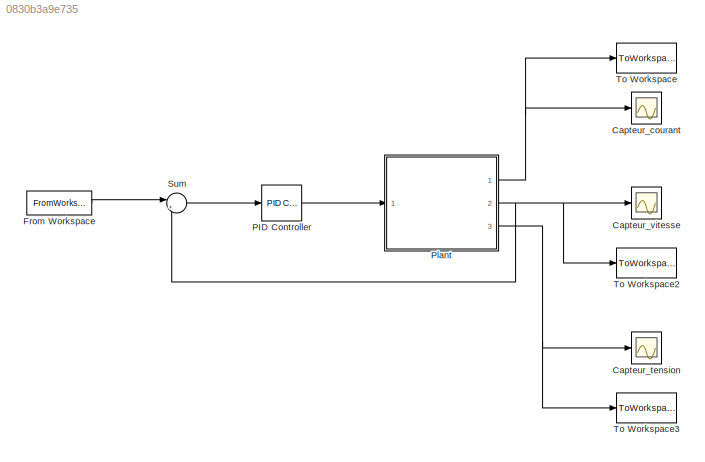
MODEL slx_0830b3a9e735
KIND model
CONFIG AbsTol = auto
CONFIG EnableMultiTasking = off
CONFIG FixedStep = T
CONFIG MaxStep = T
CONFIG MinStep = auto
CONFIG RelTol = 1e-3
CONFIG SampleTimeConstraint = Unconstrained
CONFIG Solver = ode4
CONFIG SolverName = ode4
CONFIG StartTime = 0.0
CONFIG StopTime = simEnd
BLOCK [Scope] Capteur_courant
  Floating = off
  NumInputPorts = 1
  Ports = [1]
  ScopeSpecificationString = Simulink.scopes.TimeScopeBlockCfg('CurrentConfiguration', extmgr.ConfigurationSet(extmgr.Configuration('Core','General UI',true),extmgr.Configuration('Core','Source UI',true),extmgr.Configuration('Sources','WiredSimulink',true,'DataLoggingVariableName','currant','DataLoggingSaveFormat','StructureWithTime'),extmgr.Configuration('Visuals','Time Domain',true,'SerializedDisplays',{struct('MinYLimReal'...<+1482ch>
BLOCK [Scope] Capteur_tension
  Floating = off
  NumInputPorts = 1
  Ports = [1]
  ScopeSpecificationString = Simulink.scopes.TimeScopeBlockCfg('CurrentConfiguration', extmgr.ConfigurationSet(extmgr.Configuration('Core','General UI',true),extmgr.Configuration('Core','Source UI',true),extmgr.Configuration('Sources','WiredSimulink',true,'DataLoggingVariableName','ScopeData6','DataLoggingSaveFormat','StructureWithTime'),extmgr.Configuration('Visuals','Time Domain',true,'SerializedDisplays',{struct('MinYLimRe...<+1489ch>
BLOCK [Scope] Capteur_vitesse
  Floating = off
  NumInputPorts = 1
  Ports = [1]
  ScopeSpecificationString = Simulink.scopes.TimeScopeBlockCfg('CurrentConfiguration', extmgr.ConfigurationSet(extmgr.Configuration('Core','General UI',true),extmgr.Configuration('Core','Source UI',true),extmgr.Configuration('Sources','WiredSimulink',true,'DataLoggingVariableName','speed','DataLoggingSaveFormat','StructureWithTime'),extmgr.Configuration('Visuals','Time Domain',true,'SerializedDisplays',{struct('MinYLimReal','...<+1457ch>
BLOCK [FromWorkspace] From Workspace
  SampleTime = 0
  VariableName = command
  ZeroCross = on
BLOCK [Reference] PID Controller  REF=simulink/Continuous/PID Controller
  Ports = [1, 1]
  SourceBlock = simulink/Continuous/PID Controller
  SourceProductBaseCode = SL
  SourceProductName = Simulink
  SourceType = PID 1dof
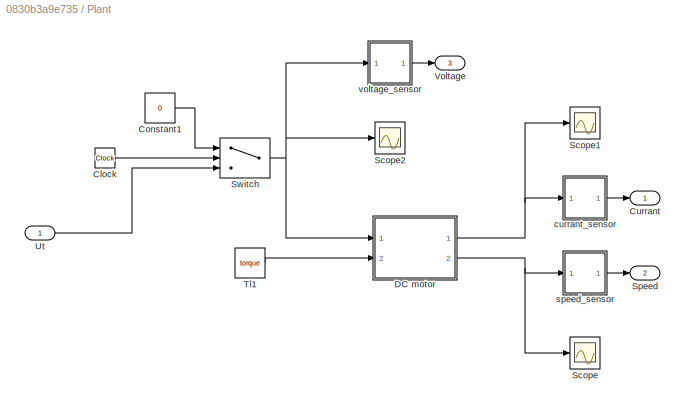
BLOCK [SubSystem] Plant
  Ports = [1, 3]
  RequestExecContextInheritance = off
BLOCK [Clock] Plant/Clock
BLOCK [Constant] Plant/Constant1
  Value = 0
BLOCK [Outport] Plant/Currant
  IconDisplay = Port number
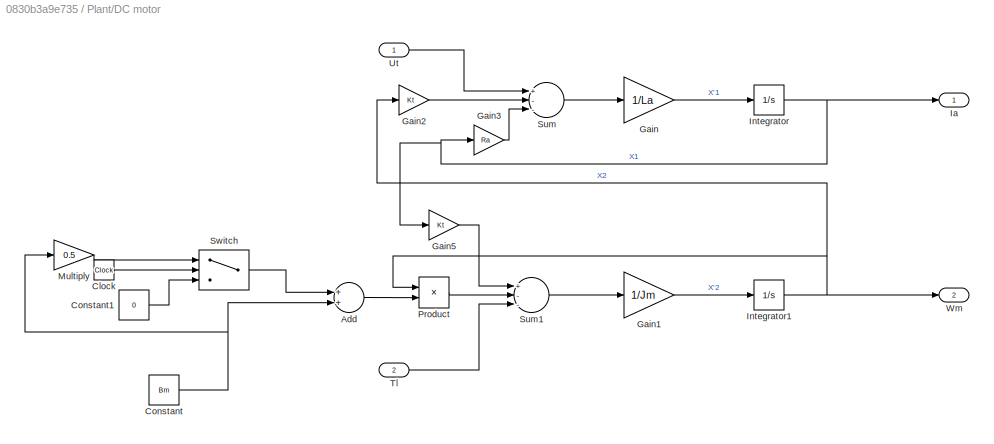
BLOCK [SubSystem] Plant/DC motor
  Ports = [2, 2]
  RequestExecContextInheritance = off
BLOCK [Sum] Plant/DC motor/Add
  InputSameDT = off
  OutDataTypeStr = Inherit: Inherit via internal rule
  Ports = [2, 1]
  SaturateOnIntegerOverflow = off
BLOCK [Clock] Plant/DC motor/Clock
BLOCK [Constant] Plant/DC motor/Constant
  Value = Bm
BLOCK [Constant] Plant/DC motor/Constant1
  Value = 0
BLOCK [Gain] Plant/DC motor/Gain
  Gain = 1/La
  OutDataTypeStr = Inherit: Inherit via internal rule
  ParamDataTypeStr = Inherit: Inherit via internal rule
  SaturateOnIntegerOverflow = off
BLOCK [Gain] Plant/DC motor/Gain1
  Gain = 1/Jm
  OutDataTypeStr = Inherit: Inherit via internal rule
  ParamDataTypeStr = Inherit: Inherit via internal rule
  SaturateOnIntegerOverflow = off
BLOCK [Gain] Plant/DC motor/Gain2
  Gain = Kt
  OutDataTypeStr = Inherit: Inherit via internal rule
  ParamDataTypeStr = Inherit: Inherit via internal rule
  SaturateOnIntegerOverflow = off
BLOCK [Gain] Plant/DC motor/Gain3
  Gain = Ra
  OutDataTypeStr = Inherit: Inherit via internal rule
  ParamDataTypeStr = Inherit: Inherit via internal rule
  SaturateOnIntegerOverflow = off
BLOCK [Gain] Plant/DC motor/Gain5
  Gain = Kt
  OutDataTypeStr = Inherit: Inherit via internal rule
  ParamDataTypeStr = Inherit: Inherit via internal rule
  SaturateOnIntegerOverflow = off
BLOCK [Outport] Plant/DC motor/Ia
  IconDisplay = Port number
BLOCK [Integrator] Plant/DC motor/Integrator
  Ports = [1, 1]
BLOCK [Integrator] Plant/DC motor/Integrator1
  Ports = [1, 1]
BLOCK [Gain] Plant/DC motor/Multiply
  Gain = 0.5
  OutDataTypeStr = Inherit: Inherit via internal rule
  ParamDataTypeStr = Inherit: Inherit via internal rule
  SaturateOnIntegerOverflow = off
BLOCK [Product] Plant/DC motor/Product
  InputSameDT = off
  OutDataTypeStr = Inherit: Inherit via internal rule
  Ports = [2, 1]
  RndMeth = Floor
  SaturateOnIntegerOverflow = off
BLOCK [Sum] Plant/DC motor/Sum
  InputSameDT = off
  Inputs = +--
  OutDataTypeStr = Inherit: Inherit via internal rule
  Ports = [3, 1]
  SaturateOnIntegerOverflow = off
BLOCK [Sum] Plant/DC motor/Sum1
  InputSameDT = off
  Inputs = +--
  OutDataTypeStr = Inherit: Inherit via internal rule
  Ports = [3, 1]
  SaturateOnIntegerOverflow = off
BLOCK [Switch] Plant/DC motor/Switch
  Criteria = u2 > Threshold
  InputSameDT = off
  SaturateOnIntegerOverflow = off
  Threshold = tBm
BLOCK [Inport] Plant/DC motor/Tl
  IconDisplay = Port number
  Port = 2
BLOCK [Inport] Plant/DC motor/Ut
  IconDisplay = Port number
BLOCK [Outport] Plant/DC motor/Wm
  IconDisplay = Port number
  Port = 2
BLOCK [Scope] Plant/Scope
  Floating = off
  NumInputPorts = 1
  Ports = [1]
  ScopeSpecificationString = Simulink.scopes.TimeScopeBlockCfg('CurrentConfiguration', extmgr.ConfigurationSet(extmgr.Configuration('Core','General UI',true),extmgr.Configuration('Core','Source UI',true),extmgr.Configuration('Sources','WiredSimulink',true,'DataLoggingVariableName','ScopeData2'),extmgr.Configuration('Visuals','Time Domain',true,'SerializedDisplays',{struct('MinYLimReal','-2.38427','MaxYLimReal','21.45842','YLa...<+1404ch>
BLOCK [Scope] Plant/Scope1
  Floating = off
  NumInputPorts = 1
  Ports = [1]
  ScopeSpecificationString = Simulink.scopes.TimeScopeBlockCfg('CurrentConfiguration', extmgr.ConfigurationSet(extmgr.Configuration('Core','General UI',true),extmgr.Configuration('Core','Source UI',true),extmgr.Configuration('Sources','WiredSimulink',true,'DataLoggingVariableName','ScopeData3'),extmgr.Configuration('Visuals','Time Domain',true,'SerializedDisplays',{struct('MinYLimReal','-0.29608','MaxYLimReal','2.66473','YLab...<+1399ch>
BLOCK [Scope] Plant/Scope2
  Floating = off
  NumInputPorts = 1
  Ports = [1]
  ScopeSpecificationString = Simulink.scopes.TimeScopeBlockCfg('CurrentConfiguration', extmgr.ConfigurationSet(extmgr.Configuration('Core','General UI',true),extmgr.Configuration('Core','Source UI',true),extmgr.Configuration('Sources','WiredSimulink',true,'DataLoggingVariableName','ScopeData5'),extmgr.Configuration('Visuals','Time Domain',true,'SerializedDisplays',{struct('MinYLimReal','-21.24447','MaxYLimReal','191.19855','Y...<+1405ch>
BLOCK [Outport] Plant/Speed
  IconDisplay = Port number
  Port = 2
BLOCK [Switch] Plant/Switch
  Criteria = u2 > Threshold
  InputSameDT = off
  SaturateOnIntegerOverflow = off
  Threshold = tUt
BLOCK [Constant] Plant/Tl1
  Value = torque
BLOCK [Inport] Plant/Ut
  IconDisplay = Port number
BLOCK [Outport] Plant/Voltage
  IconDisplay = Port number
  Port = 3
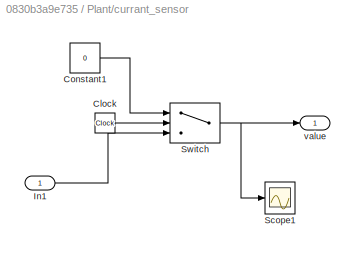
BLOCK [SubSystem] Plant/currant_sensor
  Ports = [1, 1]
  RequestExecContextInheritance = off
BLOCK [Clock] Plant/currant_sensor/Clock
BLOCK [Constant] Plant/currant_sensor/Constant1
  Value = 0
BLOCK [Inport] Plant/currant_sensor/In1
  IconDisplay = Port number
BLOCK [Scope] Plant/currant_sensor/Scope1
  Floating = off
  NumInputPorts = 1
  Ports = [1]
  ScopeSpecificationString = Simulink.scopes.TimeScopeBlockCfg('CurrentConfiguration', extmgr.ConfigurationSet(extmgr.Configuration('Core','General UI',true),extmgr.Configuration('Core','Source UI',true),extmgr.Configuration('Sources','WiredSimulink',true,'DataLoggingVariableName','ScopeData1'),extmgr.Configuration('Visuals','Time Domain',true,'SerializedDisplays',{struct('MinYLimReal','-2.73824','MaxYLimReal','17.96612','YLa...<+1415ch>
BLOCK [Switch] Plant/currant_sensor/Switch
  Criteria = u2 > Threshold
  InputSameDT = off
  SaturateOnIntegerOverflow = off
  Threshold = tI
BLOCK [Outport] Plant/currant_sensor/value
  IconDisplay = Port number
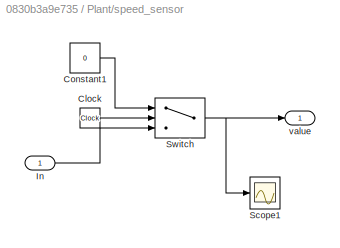
BLOCK [SubSystem] Plant/speed_sensor
  Ports = [1, 1]
  RequestExecContextInheritance = off
BLOCK [Clock] Plant/speed_sensor/Clock
BLOCK [Constant] Plant/speed_sensor/Constant1
  Value = 0
BLOCK [Inport] Plant/speed_sensor/In
  IconDisplay = Port number
BLOCK [Scope] Plant/speed_sensor/Scope1
  Floating = off
  NumInputPorts = 1
  Ports = [1]
  ScopeSpecificationString = Simulink.scopes.TimeScopeBlockCfg('CurrentConfiguration', extmgr.ConfigurationSet(extmgr.Configuration('Core','General UI',true),extmgr.Configuration('Core','Source UI',true),extmgr.Configuration('Sources','WiredSimulink',true,'DataLoggingVariableName','ScopeData1'),extmgr.Configuration('Visuals','Time Domain',true,'SerializedDisplays',{struct('MinYLimReal','-33.05106','MaxYLimReal','218.30073','Y...<+1421ch>
BLOCK [Switch] Plant/speed_sensor/Switch
  Criteria = u2 > Threshold
  InputSameDT = off
  SaturateOnIntegerOverflow = off
  Threshold = tW
BLOCK [Outport] Plant/speed_sensor/value
  IconDisplay = Port number
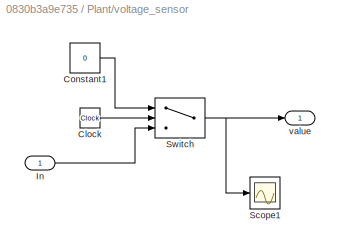
BLOCK [SubSystem] Plant/voltage_sensor
  Ports = [1, 1]
  RequestExecContextInheritance = off
BLOCK [Clock] Plant/voltage_sensor/Clock
BLOCK [Constant] Plant/voltage_sensor/Constant1
  Value = 0
BLOCK [Inport] Plant/voltage_sensor/In
  IconDisplay = Port number
BLOCK [Scope] Plant/voltage_sensor/Scope1
  Floating = off
  NumInputPorts = 1
  Ports = [1]
  ScopeSpecificationString = Simulink.scopes.TimeScopeBlockCfg('CurrentConfiguration', extmgr.ConfigurationSet(extmgr.Configuration('Core','General UI',true),extmgr.Configuration('Core','Source UI',true),extmgr.Configuration('Sources','WiredSimulink',true,'DataLoggingVariableName','ScopeData1'),extmgr.Configuration('Visuals','Time Domain',true,'SerializedDisplays',{struct('MinYLimReal','17.5947','MaxYLimReal','25.05524','YLab...<+1413ch>
BLOCK [Switch] Plant/voltage_sensor/Switch
  Criteria = u2 > Threshold
  InputSameDT = off
  SaturateOnIntegerOverflow = off
  Threshold = tU
BLOCK [Outport] Plant/voltage_sensor/value
  IconDisplay = Port number
BLOCK [Sum] Sum
  IconShape = round
  InputSameDT = off
  Inputs = |+-
  OutDataTypeStr = Inherit: Inherit via internal rule
  Ports = [2, 1]
  SaturateOnIntegerOverflow = off
BLOCK [ToWorkspace] To Workspace
  FixptAsFi = on
  MaxDataPoints = inf
  Ports = [1]
  SampleTime = T
  SaveFormat = Timeseries
  VariableName = currant
BLOCK [ToWorkspace] To Workspace2
  FixptAsFi = on
  MaxDataPoints = inf
  Ports = [1]
  SampleTime = T
  SaveFormat = Timeseries
  VariableName = speed
BLOCK [ToWorkspace] To Workspace3
  FixptAsFi = on
  MaxDataPoints = inf
  Ports = [1]
  SampleTime = T
  SaveFormat = Timeseries
  VariableName = voltage
LINE From Workspace:1 -> Sum:1
LINE PID Controller:1 -> Plant:1
LINE Plant/Clock:1 -> Plant/Switch:2
LINE Plant/Constant1:1 -> Plant/Switch:1
LINE Plant/DC motor/Add:1 -> Plant/DC motor/Product:2
LINE Plant/DC motor/Clock:1 -> Plant/DC motor/Switch:2
LINE Plant/DC motor/Constant1:1 -> Plant/DC motor/Switch:3
NET Plant/DC motor/Constant:1 -> Plant/DC motor/Add:2, Plant/DC motor/Multiply:1
LINE Plant/DC motor/Gain1:1 -> Plant/DC motor/Integrator1:1
LINE Plant/DC motor/Gain2:1 -> Plant/DC motor/Sum:2
LINE Plant/DC motor/Gain3:1 -> Plant/DC motor/Sum:3
LINE Plant/DC motor/Gain5:1 -> Plant/DC motor/Sum1:1
LINE Plant/DC motor/Gain:1 -> Plant/DC motor/Integrator:1
NET Plant/DC motor/Integrator1:1 -> Plant/DC motor/Gain2:1, Plant/DC motor/Product:1, Plant/DC motor/Wm:1
NET Plant/DC motor/Integrator:1 -> Plant/DC motor/Gain3:1, Plant/DC motor/Gain5:1, Plant/DC motor/Ia:1
LINE Plant/DC motor/Multiply:1 -> Plant/DC motor/Switch:1
LINE Plant/DC motor/Product:1 -> Plant/DC motor/Sum1:2
LINE Plant/DC motor/Sum1:1 -> Plant/DC motor/Gain1:1
LINE Plant/DC motor/Sum:1 -> Plant/DC motor/Gain:1
LINE Plant/DC motor/Switch:1 -> Plant/DC motor/Add:1
LINE Plant/DC motor/Tl:1 -> Plant/DC motor/Sum1:3
LINE Plant/DC motor/Ut:1 -> Plant/DC motor/Sum:1
NET Plant/DC motor:1 -> Plant/Scope1:1, Plant/currant_sensor:1
NET Plant/DC motor:2 -> Plant/Scope:1, Plant/speed_sensor:1
NET Plant/Switch:1 -> Plant/DC motor:1, Plant/Scope2:1, Plant/voltage_sensor:1
LINE Plant/Tl1:1 -> Plant/DC motor:2
LINE Plant/Ut:1 -> Plant/Switch:3
LINE Plant/currant_sensor/Clock:1 -> Plant/currant_sensor/Switch:2
LINE Plant/currant_sensor/Constant1:1 -> Plant/currant_sensor/Switch:1
LINE Plant/currant_sensor/In1:1 -> Plant/currant_sensor/Switch:3
NET Plant/currant_sensor/Switch:1 -> Plant/currant_sensor/Scope1:1, Plant/currant_sensor/value:1
LINE Plant/currant_sensor:1 -> Plant/Currant:1
LINE Plant/speed_sensor/Clock:1 -> Plant/speed_sensor/Switch:2
LINE Plant/speed_sensor/Constant1:1 -> Plant/speed_sensor/Switch:1
LINE Plant/speed_sensor/In:1 -> Plant/speed_sensor/Switch:3
NET Plant/speed_sensor/Switch:1 -> Plant/speed_sensor/Scope1:1, Plant/speed_sensor/value:1
LINE Plant/speed_sensor:1 -> Plant/Speed:1
LINE Plant/voltage_sensor/Clock:1 -> Plant/voltage_sensor/Switch:2
LINE Plant/voltage_sensor/Constant1:1 -> Plant/voltage_sensor/Switch:1
LINE Plant/voltage_sensor/In:1 -> Plant/voltage_sensor/Switch:3
NET Plant/voltage_sensor/Switch:1 -> Plant/voltage_sensor/Scope1:1, Plant/voltage_sensor/value:1
LINE Plant/voltage_sensor:1 -> Plant/Voltage:1
NET Plant:1 -> Capteur_courant:1, To Workspace:1
NET Plant:2 -> Capteur_vitesse:1, Sum:2, To Workspace2:1
NET Plant:3 -> Capteur_tension:1, To Workspace3:1
LINE Sum:1 -> PID Controller:1
note: NET lines group one-source signal fan-out (src -> all destinations, sorted); 1:1 wires keep LINE
